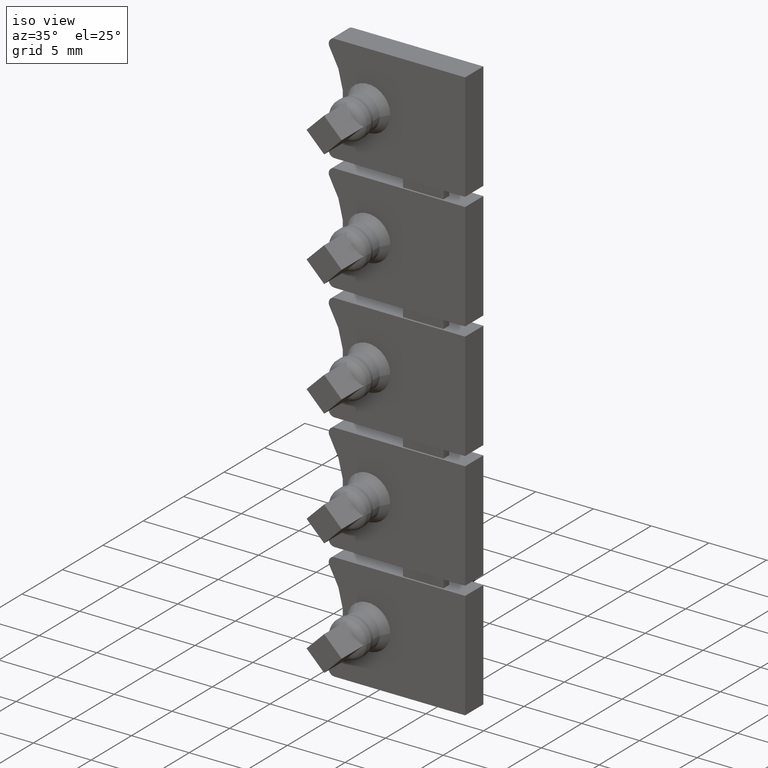
[diagram: clean part render]
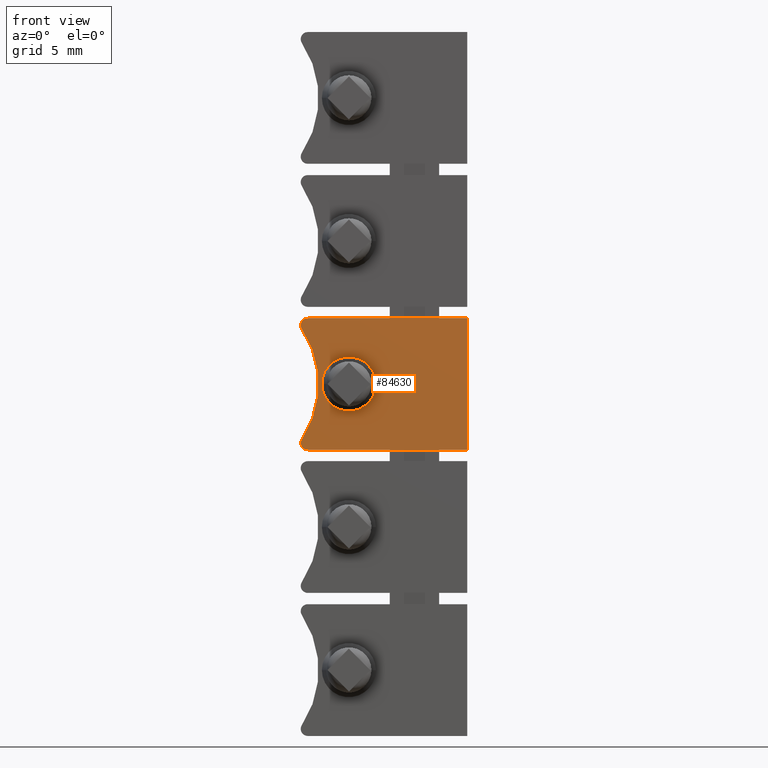
[diagram: tour spotlight — one face highlighted and labeled with its STEP entity id]
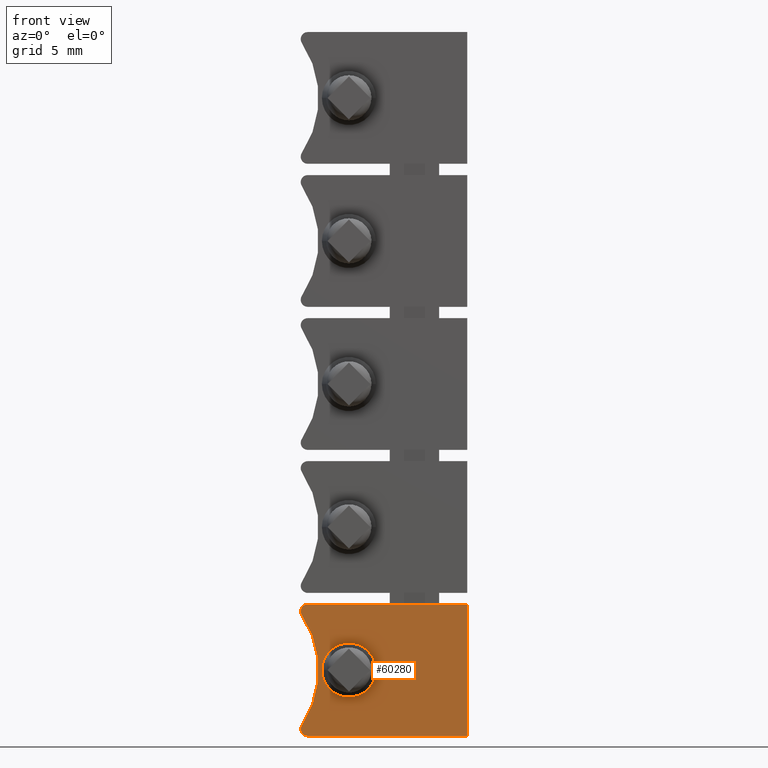
[diagram: tour spotlight — one face highlighted and labeled with its STEP entity id]
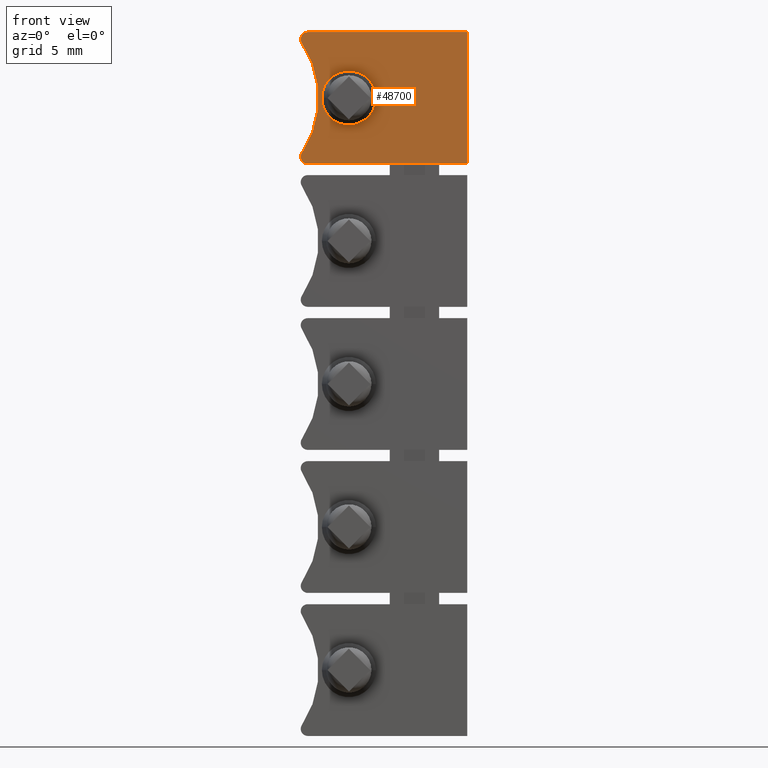
[diagram: tour spotlight — one face highlighted and labeled with its STEP entity id]
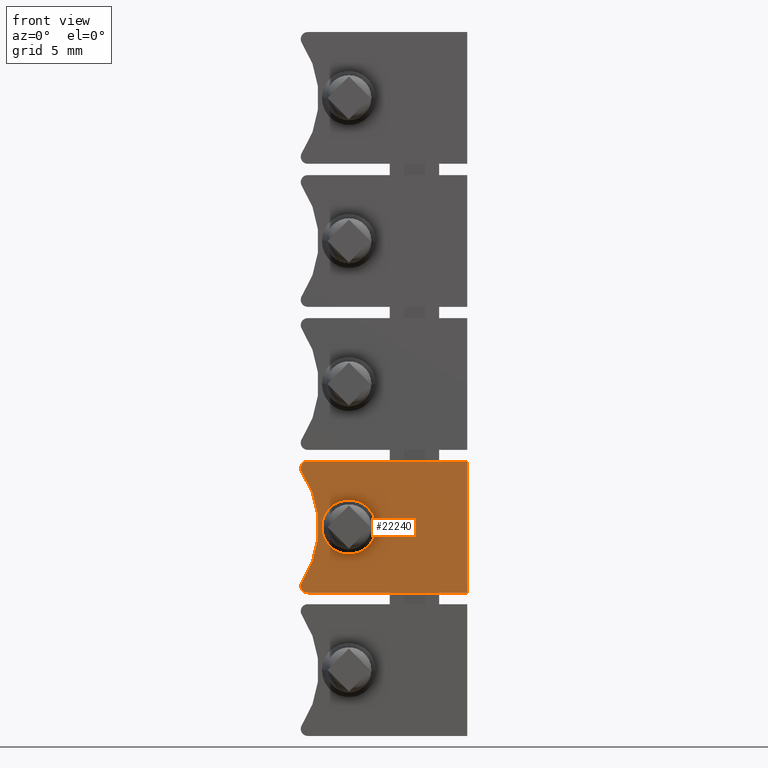
[diagram: tour spotlight — one face highlighted and labeled with its STEP entity id]
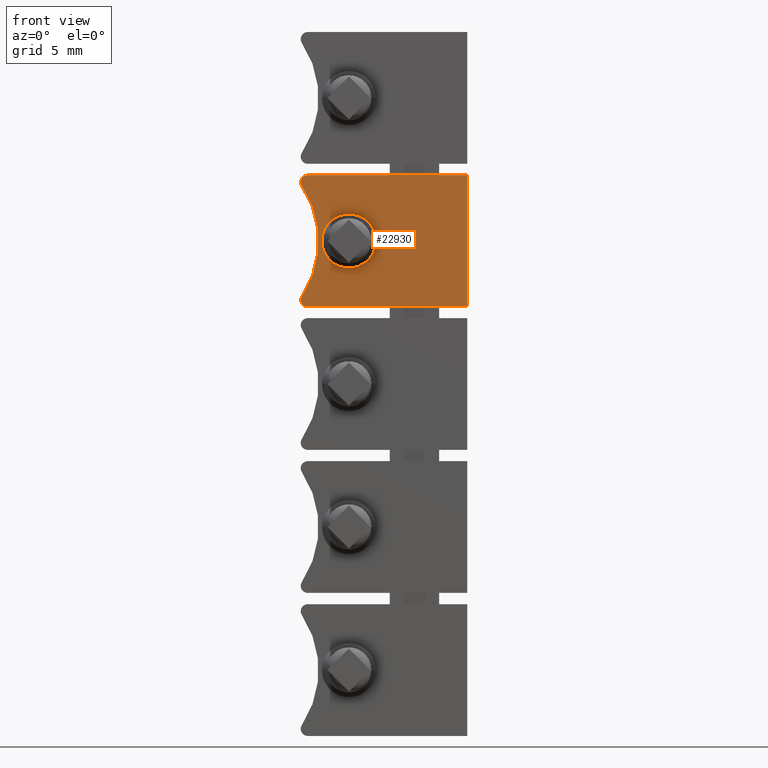
[diagram: tour spotlight — one face highlighted and labeled with its STEP entity id]
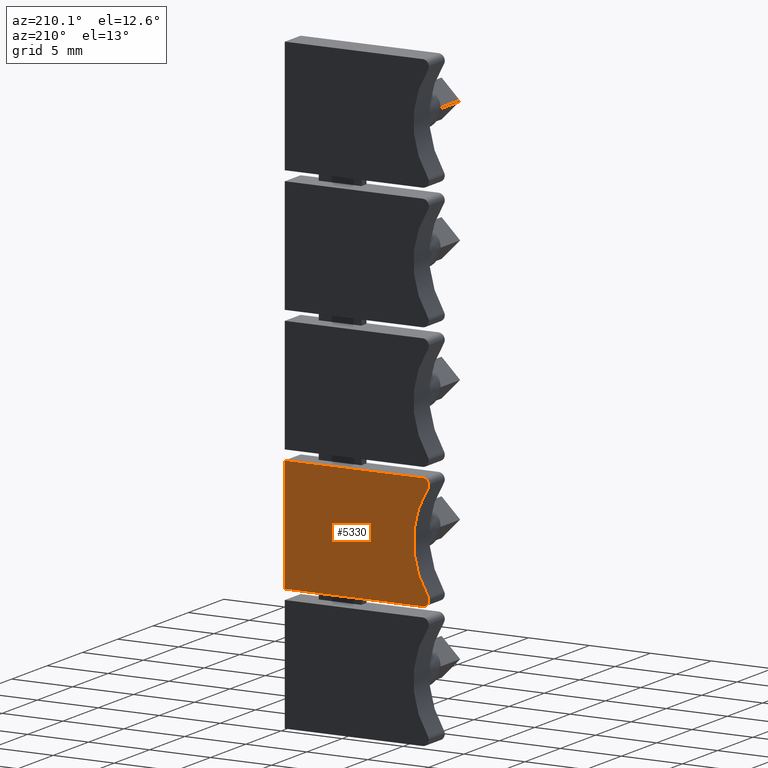
[diagram: tour spotlight — one face highlighted and labeled with its STEP entity id]
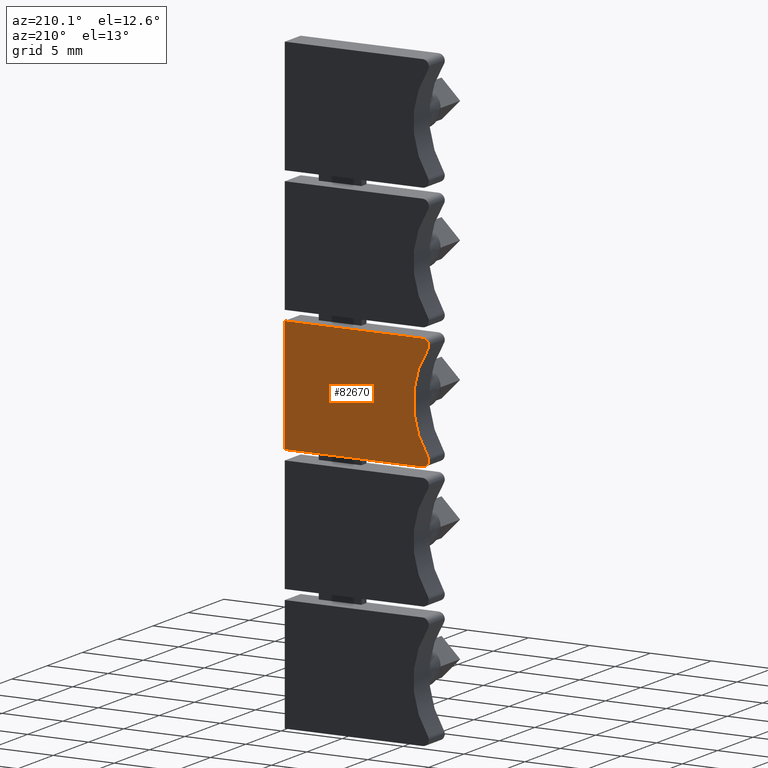
[diagram: tour spotlight — one face highlighted and labeled with its STEP entity id]
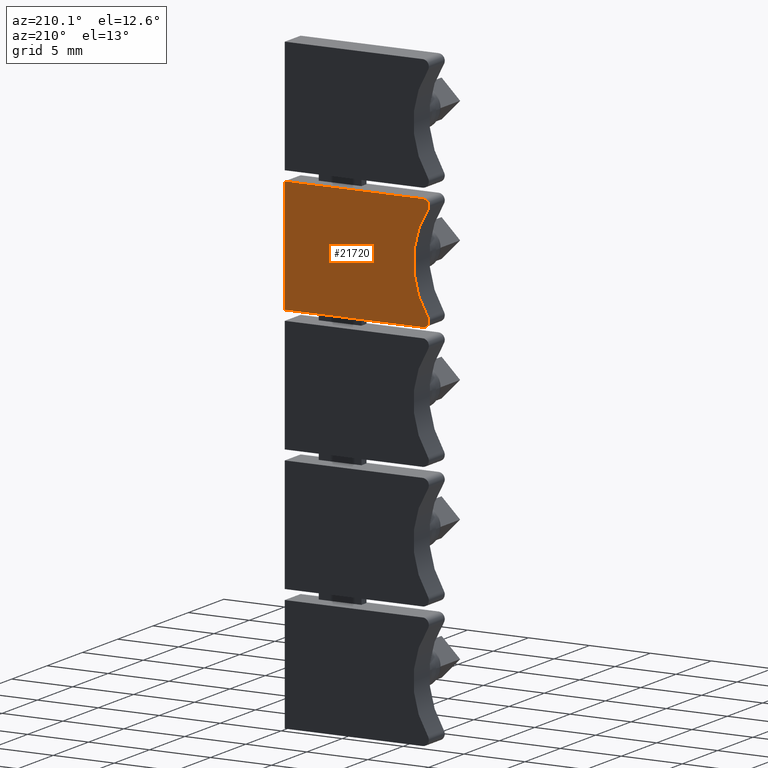
[diagram: tour spotlight — one face highlighted and labeled with its STEP entity id]
A machine part: a face-by-face anatomy tour. The part has 131 B-rep faces; the first image is the clean iso view, then the 8 largest visible faces are spotlighted one at a time (largest first), each with its STEP entity span.

Face 1 — front view, entity #84630. In plain terms, the highlighted planar face has unit normal (0, 1, -0).
Definition (entity closure, byte-faithful):
#23410=CARTESIAN_POINT('',(-18.9568131782243,42.8120767804526,
39.3466666640875));
#23420=VERTEX_POINT('',#23410);
#23470=CARTESIAN_POINT('',(-24.7719648438106,42.812076780478,35.45));
#23480=DIRECTION('',(4.37360856649983E-12,1.,0.));
#23490=DIRECTION('',(-1.,4.37360856649983E-12,0.));
#23500=AXIS2_PLACEMENT_3D('',#23470,#23480,#23490);
#23510=CIRCLE('',#23500,6.99999999891299);
#23520=CARTESIAN_POINT('',(-18.9568131816267,42.8120767804526,
31.5533333308349));
#23530=VERTEX_POINT('',#23520);
#23540=EDGE_CURVE('',#23420,#23530,#23510,.T.);
#73780=CARTESIAN_POINT('',(-18.2837265971489,42.8120767804496,
40.1249999972799));
#73790=DIRECTION('',(-1.,4.37360856649983E-12,0.));
#73800=VECTOR('',#73790,1.);
#73810=LINE('',#73780,#73800);
#73820=CARTESIAN_POINT('',(-7.22161674200213,42.8120767804012,
40.1249999972799));
#73830=VERTEX_POINT('',#73820);
#73840=CARTESIAN_POINT('',(-18.5414452020465,42.8120767804508,
40.1249999972799));
#73850=VERTEX_POINT('',#73840);
#73860=EDGE_CURVE('',#73830,#73850,#73810,.T.);
#75580=CARTESIAN_POINT('',(-7.22161674200213,42.8120767804012,
7.57955973337427));
#75590=DIRECTION('',(0.,0.,-1.));
#75600=VECTOR('',#75590,1.);
#75610=LINE('',#75580,#75600);
#75620=CARTESIAN_POINT('',(-7.22161674200213,42.8120767804012,
30.7749999972799));
#75630=VERTEX_POINT('',#75620);
#75640=EDGE_CURVE('',#73830,#75630,#75610,.T.);
#77340=CARTESIAN_POINT('',(-18.5414452020465,42.8120767804508,
39.6249999972799));
#77350=DIRECTION('',(4.37360856649983E-12,1.,0.));
#77360=DIRECTION('',(-1.,4.37360856649983E-12,0.));
#77370=AXIS2_PLACEMENT_3D('',#77340,#77350,#77360);
#77380=CIRCLE('',#77370,0.5);
#77390=EDGE_CURVE('',#23420,#73850,#77380,.T.);
#78280=CARTESIAN_POINT('',(-18.541445205692,42.8120767804508,
30.7749999972799));
#78290=VERTEX_POINT('',#78280);
#78320=CARTESIAN_POINT('',(-18.2837265971489,42.8120767804496,
30.7749999972799));
#78330=DIRECTION('',(1.,-4.37360856649983E-12,0.));
#78340=VECTOR('',#78330,1.);
#78350=LINE('',#78320,#78340);
#78360=EDGE_CURVE('',#78290,#75630,#78350,.T.);
#83980=CARTESIAN_POINT('',(-18.541445205692,42.8120767804508,
31.2749999972799));
#83990=DIRECTION('',(4.37360856649983E-12,1.,0.));
#84000=DIRECTION('',(-1.,4.37360856649983E-12,0.));
#84010=AXIS2_PLACEMENT_3D('',#83980,#83990,#84000);
#84020=CIRCLE('',#84010,0.5);
#84030=EDGE_CURVE('',#78290,#23530,#84020,.T.);
#84350=CARTESIAN_POINT('',(-18.2837265971489,42.8120767804496,
38.0295597333743));
#84360=DIRECTION('',(4.37360856649983E-12,1.,-0.));
#84370=DIRECTION('',(-1.,4.37360856649983E-12,0.));
#84380=AXIS2_PLACEMENT_3D('',#84350,#84360,#84370);
#84390=PLANE('',#84380);
#84400=CARTESIAN_POINT('',(-15.6219648448759,42.812076780438,35.45));
#84410=DIRECTION('',(4.37360856649983E-12,1.,0.));
#84420=DIRECTION('',(-1.,4.37360856649983E-12,0.));
#84430=AXIS2_PLACEMENT_3D('',#84400,#84410,#84420);
#84440=CIRCLE('',#84430,1.91825217251941);
#84450=CARTESIAN_POINT('',(-13.7037126723565,42.8120767804296,35.45));
#84460=VERTEX_POINT('',#84450);
#84470=CARTESIAN_POINT('',(-17.5402170173953,42.8120767804464,35.45));
#84480=VERTEX_POINT('',#84470);
#84490=EDGE_CURVE('',#84460,#84480,#84440,.T.);
#84500=ORIENTED_EDGE('',*,*,#84490,.T.);
#84510=EDGE_CURVE('',#84480,#84460,#84440,.T.);
#84520=ORIENTED_EDGE('',*,*,#84510,.T.);
#84530=EDGE_LOOP('',(#84520,#84500));
#84540=FACE_BOUND('',#84530,.T.);
#84550=ORIENTED_EDGE('',*,*,#84030,.F.);
#84560=ORIENTED_EDGE('',*,*,#23540,.T.);
#84570=ORIENTED_EDGE('',*,*,#77390,.F.);
#84580=ORIENTED_EDGE('',*,*,#73860,.T.);
#84590=ORIENTED_EDGE('',*,*,#75640,.F.);
#84600=ORIENTED_EDGE('',*,*,#78360,.T.);
#84610=EDGE_LOOP('',(#84600,#84590,#84580,#84570,#84560,#84550));
#84620=FACE_OUTER_BOUND('',#84610,.T.);
#84630=ADVANCED_FACE('',(#84540,#84620),#84390,.F.);

Face 2 — front view, entity #60280. In plain terms, the highlighted planar face has unit normal (0, 1, -0).
Definition (entity closure, byte-faithful):
#42450=CARTESIAN_POINT('',(-18.2837265971489,42.8120767804496,
19.8249999972799));
#42460=DIRECTION('',(-1.,4.37360856649983E-12,0.));
#42470=VECTOR('',#42460,1.);
#42480=LINE('',#42450,#42470);
#42490=CARTESIAN_POINT('',(-7.22161674200213,42.8120767804012,
19.8249999972799));
#42500=VERTEX_POINT('',#42490);
#42510=CARTESIAN_POINT('',(-18.5414452020465,42.8120767804508,
19.8249999972799));
#42520=VERTEX_POINT('',#42510);
#42530=EDGE_CURVE('',#42500,#42520,#42480,.T.);
#49130=CARTESIAN_POINT('',(-18.2837265971489,42.8120767804496,
10.4749999972799));
#49140=DIRECTION('',(1.,-4.37360856649983E-12,0.));
#49150=VECTOR('',#49140,1.);
#49160=LINE('',#49130,#49150);
#49170=CARTESIAN_POINT('',(-18.541445205692,42.8120767804508,
10.4749999972799));
#49180=VERTEX_POINT('',#49170);
#49190=CARTESIAN_POINT('',(-7.22161674200213,42.8120767804012,
10.4749999972799));
#49200=VERTEX_POINT('',#49190);
#49210=EDGE_CURVE('',#49180,#49200,#49160,.T.);
#52400=CARTESIAN_POINT('',(-18.9568131782243,42.8120767804526,
19.0466666640875));
#52410=VERTEX_POINT('',#52400);
#52460=CARTESIAN_POINT('',(-24.7719648438106,42.812076780478,15.15));
#52470=DIRECTION('',(4.37360856649983E-12,1.,0.));
#52480=DIRECTION('',(-1.,4.37360856649983E-12,0.));
#52490=AXIS2_PLACEMENT_3D('',#52460,#52470,#52480);
#52500=CIRCLE('',#52490,6.99999999891299);
#52510=CARTESIAN_POINT('',(-18.9568131816267,42.8120767804526,
11.2533333308349));
#52520=VERTEX_POINT('',#52510);
#52530=EDGE_CURVE('',#52410,#52520,#52500,.T.);
#59620=CARTESIAN_POINT('',(-13.7037126723565,42.8120767804296,15.15));
#59630=VERTEX_POINT('',#59620);
#59720=CARTESIAN_POINT('',(-17.5402170173953,42.8120767804464,15.15));
#59730=VERTEX_POINT('',#59720);
#59760=CARTESIAN_POINT('',(-15.6219648448759,42.812076780438,15.15));
#59770=DIRECTION('',(4.37360856649983E-12,1.,0.));
#59780=DIRECTION('',(-1.,4.37360856649983E-12,0.));
#59790=AXIS2_PLACEMENT_3D('',#59760,#59770,#59780);
#59800=CIRCLE('',#59790,1.91825217251941);
#59810=EDGE_CURVE('',#59730,#59630,#59800,.T.);
#59930=CARTESIAN_POINT('',(-18.2837265971489,42.8120767804496,
17.7295597333743));
#59940=DIRECTION('',(4.37360856649983E-12,1.,-0.));
#59950=DIRECTION('',(-1.,4.37360856649983E-12,0.));
#59960=AXIS2_PLACEMENT_3D('',#59930,#59940,#59950);
#59970=PLANE('',#59960);
#59980=EDGE_CURVE('',#59630,#59730,#59800,.T.);
#59990=ORIENTED_EDGE('',*,*,#59980,.T.);
#60000=ORIENTED_EDGE('',*,*,#59810,.T.);
#60010=EDGE_LOOP('',(#60000,#59990));
#60020=FACE_BOUND('',#60010,.T.);
#60030=CARTESIAN_POINT('',(-18.541445205692,42.8120767804508,
10.9749999972799));
#60040=DIRECTION('',(4.37360856649983E-12,1.,0.));
#60050=DIRECTION('',(-1.,4.37360856649983E-12,0.));
#60060=AXIS2_PLACEMENT_3D('',#60030,#60040,#60050);
#60070=CIRCLE('',#60060,0.5);
#60080=EDGE_CURVE('',#49180,#52520,#60070,.T.);
#60090=ORIENTED_EDGE('',*,*,#60080,.F.);
#60100=ORIENTED_EDGE('',*,*,#52530,.T.);
#60110=CARTESIAN_POINT('',(-18.5414452020465,42.8120767804508,
19.3249999972799));
#60120=DIRECTION('',(4.37360856649983E-12,1.,0.));
#60130=DIRECTION('',(-1.,4.37360856649983E-12,0.));
#60140=AXIS2_PLACEMENT_3D('',#60110,#60120,#60130);
#60150=CIRCLE('',#60140,0.5);
#60160=EDGE_CURVE('',#52410,#42520,#60150,.T.);
#60170=ORIENTED_EDGE('',*,*,#60160,.F.);
#60180=ORIENTED_EDGE('',*,*,#42530,.T.);
#60190=CARTESIAN_POINT('',(-7.22161674200213,42.8120767804012,
7.57955973337427));
#60200=DIRECTION('',(0.,0.,-1.));
#60210=VECTOR('',#60200,1.);
#60220=LINE('',#60190,#60210);
#60230=EDGE_CURVE('',#42500,#49200,#60220,.T.);
#60240=ORIENTED_EDGE('',*,*,#60230,.F.);
#60250=ORIENTED_EDGE('',*,*,#49210,.T.);
#60260=EDGE_LOOP('',(#60250,#60240,#60180,#60170,#60100,#60090));
#60270=FACE_OUTER_BOUND('',#60260,.T.);
#60280=ADVANCED_FACE('',(#60020,#60270),#59970,.F.);

Face 3 — front view, entity #48700. In plain terms, the highlighted planar face has unit normal (0, 1, -0).
Definition (entity closure, byte-faithful):
#47700=CARTESIAN_POINT('',(-7.22161674200213,42.8120767804012,
51.0749999972799));
#47710=VERTEX_POINT('',#47700);
#47860=CARTESIAN_POINT('',(-18.541445205692,42.8120767804508,
51.0749999972799));
#47870=VERTEX_POINT('',#47860);
#47900=CARTESIAN_POINT('',(-18.2837265971489,42.8120767804496,
51.0749999972799));
#47910=DIRECTION('',(1.,-4.37360856649983E-12,0.));
#47920=VECTOR('',#47910,1.);
#47930=LINE('',#47900,#47920);
#47940=EDGE_CURVE('',#47870,#47710,#47930,.T.);
#48060=CARTESIAN_POINT('',(-18.2837265971489,42.8120767804496,
58.3295597333743));
#48070=DIRECTION('',(4.37360856649983E-12,1.,-0.));
#48080=DIRECTION('',(-1.,4.37360856649983E-12,0.));
#48090=AXIS2_PLACEMENT_3D('',#48060,#48070,#48080);
#48100=PLANE('',#48090);
#48110=CARTESIAN_POINT('',(-15.6219648448759,42.812076780438,55.75));
#48120=DIRECTION('',(4.37360856649983E-12,1.,0.));
#48130=DIRECTION('',(-1.,4.37360856649983E-12,0.));
#48140=AXIS2_PLACEMENT_3D('',#48110,#48120,#48130);
#48150=CIRCLE('',#48140,1.91825217251941);
#48160=CARTESIAN_POINT('',(-13.7037126723565,42.8120767804296,55.75));
#48170=VERTEX_POINT('',#48160);
#48180=CARTESIAN_POINT('',(-17.5402170173953,42.8120767804464,55.75));
#48190=VERTEX_POINT('',#48180);
#48200=EDGE_CURVE('',#48170,#48190,#48150,.T.);
#48210=ORIENTED_EDGE('',*,*,#48200,.T.);
#48220=EDGE_CURVE('',#48190,#48170,#48150,.T.);
#48230=ORIENTED_EDGE('',*,*,#48220,.T.);
#48240=EDGE_LOOP('',(#48230,#48210));
#48250=FACE_BOUND('',#48240,.T.);
#48260=CARTESIAN_POINT('',(-18.541445205692,42.8120767804508,
51.5749999972799));
#48270=DIRECTION('',(4.37360856649983E-12,1.,0.));
#48280=DIRECTION('',(-1.,4.37360856649983E-12,0.));
#48290=AXIS2_PLACEMENT_3D('',#48260,#48270,#48280);
#48300=CIRCLE('',#48290,0.5);
#48310=CARTESIAN_POINT('',(-18.9568131816267,42.8120767804526,
51.8533333308349));
#48320=VERTEX_POINT('',#48310);
#48330=EDGE_CURVE('',#47870,#48320,#48300,.T.);
#48340=ORIENTED_EDGE('',*,*,#48330,.F.);
#48350=CARTESIAN_POINT('',(-24.7719648438106,42.812076780478,55.75));
#48360=DIRECTION('',(4.37360856649983E-12,1.,0.));
#48370=DIRECTION('',(-1.,4.37360856649983E-12,0.));
#48380=AXIS2_PLACEMENT_3D('',#48350,#48360,#48370);
#48390=CIRCLE('',#48380,6.99999999891299);
#48400=CARTESIAN_POINT('',(-18.9568131782243,42.8120767804526,
59.6466666640875));
#48410=VERTEX_POINT('',#48400);
#48420=EDGE_CURVE('',#48410,#48320,#48390,.T.);
#48430=ORIENTED_EDGE('',*,*,#48420,.T.);
#48440=CARTESIAN_POINT('',(-18.5414452020465,42.8120767804508,
59.9249999972799));
#48450=DIRECTION('',(4.37360856649983E-12,1.,0.));
#48460=DIRECTION('',(-1.,4.37360856649983E-12,0.));
#48470=AXIS2_PLACEMENT_3D('',#48440,#48450,#48460);
#48480=CIRCLE('',#48470,0.5);
#48490=CARTESIAN_POINT('',(-18.5414452020465,42.8120767804508,
60.4249999972799));
#48500=VERTEX_POINT('',#48490);
#48510=EDGE_CURVE('',#48410,#48500,#48480,.T.);
#48520=ORIENTED_EDGE('',*,*,#48510,.F.);
#48530=CARTESIAN_POINT('',(-18.2837265971489,42.8120767804496,
60.4249999972799));
#48540=DIRECTION('',(-1.,4.37360856649983E-12,0.));
#48550=VECTOR('',#48540,1.);
#48560=LINE('',#48530,#48550);
#48570=CARTESIAN_POINT('',(-7.22161674200213,42.8120767804012,
60.4249999972799));
#48580=VERTEX_POINT('',#48570);
#48590=EDGE_CURVE('',#48580,#48500,#48560,.T.);
#48600=ORIENTED_EDGE('',*,*,#48590,.T.);
#48610=CARTESIAN_POINT('',(-7.22161674200213,42.8120767804012,
7.57955973337427));
#48620=DIRECTION('',(0.,0.,-1.));
#48630=VECTOR('',#48620,1.);
#48640=LINE('',#48610,#48630);
#48650=EDGE_CURVE('',#48580,#47710,#48640,.T.);
#48660=ORIENTED_EDGE('',*,*,#48650,.F.);
#48670=ORIENTED_EDGE('',*,*,#47940,.T.);
#48680=EDGE_LOOP('',(#48670,#48660,#48600,#48520,#48430,#48340));
#48690=FACE_OUTER_BOUND('',#48680,.T.);
#48700=ADVANCED_FACE('',(#48250,#48690),#48100,.F.);

Face 4 — front view, entity #22240. In plain terms, the highlighted planar face has unit normal (0, 1, -0).
Definition (entity closure, byte-faithful):
#100=CARTESIAN_POINT('',(-18.9568131782243,42.8120767804526,
29.1966666640875));
#110=VERTEX_POINT('',#100);
#160=CARTESIAN_POINT('',(-24.7719648438106,42.812076780478,25.3));
#170=DIRECTION('',(4.37360856649983E-12,1.,0.));
#180=DIRECTION('',(-1.,4.37360856649983E-12,0.));
#190=AXIS2_PLACEMENT_3D('',#160,#170,#180);
#200=CIRCLE('',#190,6.99999999891299);
#210=CARTESIAN_POINT('',(-18.9568131816267,42.8120767804526,
21.4033333308349));
#220=VERTEX_POINT('',#210);
#230=EDGE_CURVE('',#110,#220,#200,.T.);
#4030=CARTESIAN_POINT('',(-18.2837265971489,42.8120767804496,
20.6249999972799));
#4040=DIRECTION('',(1.,-4.37360856649983E-12,0.));
#4050=VECTOR('',#4040,1.);
#4060=LINE('',#4030,#4050);
#4070=CARTESIAN_POINT('',(-18.541445205692,42.8120767804508,
20.6249999972799));
#4080=VERTEX_POINT('',#4070);
#4090=CARTESIAN_POINT('',(-7.22161674200213,42.8120767804012,
20.6249999972799));
#4100=VERTEX_POINT('',#4090);
#4110=EDGE_CURVE('',#4080,#4100,#4060,.T.);
#4560=CARTESIAN_POINT('',(-13.7037126723565,42.8120767804296,25.3));
#4570=VERTEX_POINT('',#4560);
#4730=CARTESIAN_POINT('',(-17.5402170173953,42.8120767804464,25.3));
#4740=VERTEX_POINT('',#4730);
#4770=CARTESIAN_POINT('',(-15.6219648448759,42.812076780438,25.3));
#4780=DIRECTION('',(4.37360856649983E-12,1.,0.));
#4790=DIRECTION('',(-1.,4.37360856649983E-12,0.));
#4800=AXIS2_PLACEMENT_3D('',#4770,#4780,#4790);
#4810=CIRCLE('',#4800,1.91825217251941);
#4820=EDGE_CURVE('',#4740,#4570,#4810,.T.);
#21800=CARTESIAN_POINT('',(-18.2837265971489,42.8120767804496,
27.8795597333743));
#21810=DIRECTION('',(4.37360856649983E-12,1.,-0.));
#21820=DIRECTION('',(-1.,4.37360856649983E-12,0.));
#21830=AXIS2_PLACEMENT_3D('',#21800,#21810,#21820);
#21840=PLANE('',#21830);
#21850=EDGE_CURVE('',#4570,#4740,#4810,.T.);
#21860=ORIENTED_EDGE('',*,*,#21850,.T.);
#21870=ORIENTED_EDGE('',*,*,#4820,.T.);
#21880=EDGE_LOOP('',(#21870,#21860));
#21890=FACE_BOUND('',#21880,.T.);
#21900=CARTESIAN_POINT('',(-18.541445205692,42.8120767804508,
21.1249999972799));
#21910=DIRECTION('',(4.37360856649983E-12,1.,0.));
#21920=DIRECTION('',(-1.,4.37360856649983E-12,0.));
#21930=AXIS2_PLACEMENT_3D('',#21900,#21910,#21920);
#21940=CIRCLE('',#21930,0.5);
#21950=EDGE_CURVE('',#4080,#220,#21940,.T.);
#21960=ORIENTED_EDGE('',*,*,#21950,.F.);
#21970=ORIENTED_EDGE('',*,*,#230,.T.);
#21980=CARTESIAN_POINT('',(-18.5414452020465,42.8120767804508,
29.4749999972799));
#21990=DIRECTION('',(4.37360856649983E-12,1.,0.));
#22000=DIRECTION('',(-1.,4.37360856649983E-12,0.));
#22010=AXIS2_PLACEMENT_3D('',#21980,#21990,#22000);
#22020=CIRCLE('',#22010,0.5);
#22030=CARTESIAN_POINT('',(-18.5414452020465,42.8120767804508,
29.9749999972799));
#22040=VERTEX_POINT('',#22030);
#22050=EDGE_CURVE('',#110,#22040,#22020,.T.);
#22060=ORIENTED_EDGE('',*,*,#22050,.F.);
#22070=CARTESIAN_POINT('',(-18.2837265971489,42.8120767804496,
29.9749999972799));
#22080=DIRECTION('',(-1.,4.37360856649983E-12,0.));
#22090=VECTOR('',#22080,1.);
#22100=LINE('',#22070,#22090);
#22110=CARTESIAN_POINT('',(-7.22161674200213,42.8120767804012,
29.9749999972799));
#22120=VERTEX_POINT('',#22110);
#22130=EDGE_CURVE('',#22120,#22040,#22100,.T.);
#22140=ORIENTED_EDGE('',*,*,#22130,.T.);
#22150=CARTESIAN_POINT('',(-7.22161674200213,42.8120767804012,
7.57955973337427));
#22160=DIRECTION('',(0.,0.,-1.));
#22170=VECTOR('',#22160,1.);
#22180=LINE('',#22150,#22170);
#22190=EDGE_CURVE('',#22120,#4100,#22180,.T.);
#22200=ORIENTED_EDGE('',*,*,#22190,.F.);
#22210=ORIENTED_EDGE('',*,*,#4110,.T.);
#22220=EDGE_LOOP('',(#22210,#22200,#22140,#22060,#21970,#21960));
#22230=FACE_OUTER_BOUND('',#22220,.T.);
#22240=ADVANCED_FACE('',(#21890,#22230),#21840,.F.);

Face 5 — front view, entity #22930. In plain terms, the highlighted planar face has unit normal (0, 1, -0).
Definition (entity closure, byte-faithful):
#610=CARTESIAN_POINT('',(-13.7037126723565,42.8120767804296,45.6));
#620=VERTEX_POINT('',#610);
#780=CARTESIAN_POINT('',(-17.5402170173953,42.8120767804464,45.6));
#790=VERTEX_POINT('',#780);
#820=CARTESIAN_POINT('',(-15.6219648448759,42.812076780438,45.6));
#830=DIRECTION('',(4.37360856649983E-12,1.,0.));
#840=DIRECTION('',(-1.,4.37360856649983E-12,0.));
#850=AXIS2_PLACEMENT_3D('',#820,#830,#840);
#860=CIRCLE('',#850,1.91825217251941);
#870=EDGE_CURVE('',#790,#620,#860,.T.);
#2630=CARTESIAN_POINT('',(-18.9568131816267,42.8120767804526,
41.7033333308349));
#2640=VERTEX_POINT('',#2630);
#2670=CARTESIAN_POINT('',(-18.541445205692,42.8120767804507,
41.4249999972799));
#2680=DIRECTION('',(4.37360856649983E-12,1.,0.));
#2690=DIRECTION('',(-1.,4.37360856649983E-12,0.));
#2700=AXIS2_PLACEMENT_3D('',#2670,#2680,#2690);
#2710=CIRCLE('',#2700,0.5);
#2720=CARTESIAN_POINT('',(-18.541445205692,42.8120767804507,
40.9249999972799));
#2730=VERTEX_POINT('',#2720);
#2740=EDGE_CURVE('',#2730,#2640,#2710,.T.);
#3370=CARTESIAN_POINT('',(-7.22161674200213,42.8120767804012,
40.9249999972799));
#3380=VERTEX_POINT('',#3370);
#3480=CARTESIAN_POINT('',(-18.2837265971489,42.8120767804496,
40.9249999972799));
#3490=DIRECTION('',(1.,-4.37360856649983E-12,0.));
#3500=VECTOR('',#3490,1.);
#3510=LINE('',#3480,#3500);
#3520=EDGE_CURVE('',#2730,#3380,#3510,.T.);
#20220=CARTESIAN_POINT('',(-18.5414452020465,42.8120767804507,
50.2749999972799));
#20230=VERTEX_POINT('',#20220);
#20260=CARTESIAN_POINT('',(-18.5414452020465,42.8120767804507,
49.7749999972799));
#20270=DIRECTION('',(4.37360856649983E-12,1.,0.));
#20280=DIRECTION('',(-1.,4.37360856649983E-12,0.));
#20290=AXIS2_PLACEMENT_3D('',#20260,#20270,#20280);
#20300=CIRCLE('',#20290,0.5);
#20310=CARTESIAN_POINT('',(-18.9568131782243,42.8120767804526,
49.4966666640875));
#20320=VERTEX_POINT('',#20310);
#20330=EDGE_CURVE('',#20320,#20230,#20300,.T.);
#20570=CARTESIAN_POINT('',(-24.7719648438106,42.812076780478,45.6));
#20580=DIRECTION('',(4.37360856649983E-12,1.,0.));
#20590=DIRECTION('',(-1.,4.37360856649983E-12,0.));
#20600=AXIS2_PLACEMENT_3D('',#20570,#20580,#20590);
#20610=CIRCLE('',#20600,6.99999999891299);
#20620=EDGE_CURVE('',#20320,#2640,#20610,.T.);
#21210=CARTESIAN_POINT('',(-18.2837265971489,42.8120767804496,
50.2749999972799));
#21220=DIRECTION('',(-1.,4.37360856649983E-12,0.));
#21230=VECTOR('',#21220,1.);
#21240=LINE('',#21210,#21230);
#21250=CARTESIAN_POINT('',(-7.22161674200213,42.8120767804012,
50.2749999972799));
#21260=VERTEX_POINT('',#21250);
#21270=EDGE_CURVE('',#21260,#20230,#21240,.T.);
#22700=CARTESIAN_POINT('',(-18.2837265971489,42.8120767804496,
48.1795597333743));
#22710=DIRECTION('',(4.37360856649983E-12,1.,-0.));
#22720=DIRECTION('',(-1.,4.37360856649983E-12,0.));
#22730=AXIS2_PLACEMENT_3D('',#22700,#22710,#22720);
#22740=PLANE('',#22730);
#22750=EDGE_CURVE('',#620,#790,#860,.T.);
#22760=ORIENTED_EDGE('',*,*,#22750,.T.);
#22770=ORIENTED_EDGE('',*,*,#870,.T.);
#22780=EDGE_LOOP('',(#22770,#22760));
#22790=FACE_BOUND('',#22780,.T.);
#22800=ORIENTED_EDGE('',*,*,#2740,.F.);
#22810=ORIENTED_EDGE('',*,*,#20620,.T.);
#22820=ORIENTED_EDGE('',*,*,#20330,.F.);
#22830=ORIENTED_EDGE('',*,*,#21270,.T.);
#22840=CARTESIAN_POINT('',(-7.22161674200213,42.8120767804012,
7.57955973337427));
#22850=DIRECTION('',(0.,0.,-1.));
#22860=VECTOR('',#22850,1.);
#22870=LINE('',#22840,#22860);
#22880=EDGE_CURVE('',#21260,#3380,#22870,.T.);
#22890=ORIENTED_EDGE('',*,*,#22880,.F.);
#22900=ORIENTED_EDGE('',*,*,#3520,.T.);
#22910=EDGE_LOOP('',(#22900,#22890,#22830,#22820,#22810,#22800));
#22920=FACE_OUTER_BOUND('',#22910,.T.);
#22930=ADVANCED_FACE('',(#22790,#22920),#22740,.F.);

Face 6 — auxiliary view, entity #5330. In plain terms, the highlighted planar face has unit normal (0, 1, -0).
Definition (entity closure, byte-faithful):
#120=CARTESIAN_POINT('',(-18.9568131782144,45.0620767804526,
29.1966666640875));
#130=VERTEX_POINT('',#120);
#290=CARTESIAN_POINT('',(-18.9568131816169,45.0620767804526,
21.4033333308349));
#300=VERTEX_POINT('',#290);
#330=CARTESIAN_POINT('',(-24.7719648438007,45.062076780478,25.3));
#340=DIRECTION('',(4.37360856649983E-12,1.,0.));
#350=DIRECTION('',(-1.,4.37360856649983E-12,0.));
#360=AXIS2_PLACEMENT_3D('',#330,#340,#350);
#370=CIRCLE('',#360,6.99999999891299);
#380=EDGE_CURVE('',#130,#300,#370,.T.);
#4170=CARTESIAN_POINT('',(-7.22161674199229,45.0620767804012,
20.6249999972799));
#4180=VERTEX_POINT('',#4170);
#4210=CARTESIAN_POINT('',(-18.2837265971391,45.0620767804496,
20.6249999972799));
#4220=DIRECTION('',(-1.,4.37360856649983E-12,0.));
#4230=VECTOR('',#4220,1.);
#4240=LINE('',#4210,#4230);
#4250=CARTESIAN_POINT('',(-18.5414452056821,45.0620767804508,
20.6249999972799));
#4260=VERTEX_POINT('',#4250);
#4270=EDGE_CURVE('',#4180,#4260,#4240,.T.);
#4940=CARTESIAN_POINT('',(-18.2837265971391,45.0620767804496,
27.8795597333743));
#4950=DIRECTION('',(4.37360856649983E-12,1.,-0.));
#4960=DIRECTION('',(-1.,4.37360856649983E-12,0.));
#4970=AXIS2_PLACEMENT_3D('',#4940,#4950,#4960);
#4980=PLANE('',#4970);
#4990=CARTESIAN_POINT('',(-18.2837265971391,45.0620767804496,
29.9749999972799));
#5000=DIRECTION('',(-1.,4.37360856649983E-12,0.));
#5010=VECTOR('',#5000,1.);
#5020=LINE('',#4990,#5010);
#5030=CARTESIAN_POINT('',(-7.22161674199229,45.0620767804012,
29.9749999972799));
#5040=VERTEX_POINT('',#5030);
#5050=CARTESIAN_POINT('',(-18.5414452020366,45.0620767804508,
29.9749999972799));
#5060=VERTEX_POINT('',#5050);
#5070=EDGE_CURVE('',#5040,#5060,#5020,.T.);
#5080=ORIENTED_EDGE('',*,*,#5070,.F.);
#5090=CARTESIAN_POINT('',(-18.5414452020366,45.0620767804508,
29.4749999972799));
#5100=DIRECTION('',(4.37360856649983E-12,1.,0.));
#5110=DIRECTION('',(-1.,4.37360856649983E-12,0.));
#5120=AXIS2_PLACEMENT_3D('',#5090,#5100,#5110);
#5130=CIRCLE('',#5120,0.5);
#5140=EDGE_CURVE('',#130,#5060,#5130,.T.);
#5150=ORIENTED_EDGE('',*,*,#5140,.T.);
#5160=ORIENTED_EDGE('',*,*,#380,.F.);
#5170=CARTESIAN_POINT('',(-18.5414452056821,45.0620767804508,
21.1249999972799));
#5180=DIRECTION('',(4.37360856649983E-12,1.,0.));
#5190=DIRECTION('',(-1.,4.37360856649983E-12,0.));
#5200=AXIS2_PLACEMENT_3D('',#5170,#5180,#5190);
#5210=CIRCLE('',#5200,0.5);
#5220=EDGE_CURVE('',#4260,#300,#5210,.T.);
#5230=ORIENTED_EDGE('',*,*,#5220,.T.);
#5240=ORIENTED_EDGE('',*,*,#4270,.T.);
#5250=CARTESIAN_POINT('',(-7.22161674199229,45.0620767804012,
7.57955973337427));
#5260=DIRECTION('',(0.,0.,-1.));
#5270=VECTOR('',#5260,1.);
#5280=LINE('',#5250,#5270);
#5290=EDGE_CURVE('',#5040,#4180,#5280,.T.);
#5300=ORIENTED_EDGE('',*,*,#5290,.T.);
#5310=EDGE_LOOP('',(#5300,#5240,#5230,#5160,#5150,#5080));
#5320=FACE_OUTER_BOUND('',#5310,.T.);
#5330=ADVANCED_FACE('',(#5320),#4980,.T.);

Face 7 — auxiliary view, entity #82670. In plain terms, the highlighted planar face has unit normal (0, 1, -0).
Definition (entity closure, byte-faithful):
#23430=CARTESIAN_POINT('',(-18.9568131782144,45.0620767804526,
39.3466666640875));
#23440=VERTEX_POINT('',#23430);
#23600=CARTESIAN_POINT('',(-18.9568131816169,45.0620767804526,
31.5533333308349));
#23610=VERTEX_POINT('',#23600);
#23640=CARTESIAN_POINT('',(-24.7719648438007,45.062076780478,35.45));
#23650=DIRECTION('',(4.37360856649983E-12,1.,0.));
#23660=DIRECTION('',(-1.,4.37360856649983E-12,0.));
#23670=AXIS2_PLACEMENT_3D('',#23640,#23650,#23660);
#23680=CIRCLE('',#23670,6.99999999891299);
#23690=EDGE_CURVE('',#23440,#23610,#23680,.T.);
#73920=CARTESIAN_POINT('',(-18.5414452020366,45.0620767804508,
40.1249999972799));
#73930=VERTEX_POINT('',#73920);
#73960=CARTESIAN_POINT('',(-18.2837265971391,45.0620767804496,
40.1249999972799));
#73970=DIRECTION('',(-1.,4.37360856649983E-12,0.));
#73980=VECTOR('',#73970,1.);
#73990=LINE('',#73960,#73980);
#74000=CARTESIAN_POINT('',(-7.22161674199229,45.0620767804012,
40.1249999972799));
#74010=VERTEX_POINT('',#74000);
#74020=EDGE_CURVE('',#74010,#73930,#73990,.T.);
#75670=CARTESIAN_POINT('',(-7.22161674199229,45.0620767804012,
7.57955973337427));
#75680=DIRECTION('',(0.,0.,-1.));
#75690=VECTOR('',#75680,1.);
#75700=LINE('',#75670,#75690);
#75710=CARTESIAN_POINT('',(-7.22161674199229,45.0620767804012,
30.7749999972799));
#75720=VERTEX_POINT('',#75710);
#75730=EDGE_CURVE('',#74010,#75720,#75700,.T.);
#77260=CARTESIAN_POINT('',(-18.5414452020366,45.0620767804508,
39.6249999972799));
#77270=DIRECTION('',(4.37360856649983E-12,1.,0.));
#77280=DIRECTION('',(-1.,4.37360856649983E-12,0.));
#77290=AXIS2_PLACEMENT_3D('',#77260,#77270,#77280);
#77300=CIRCLE('',#77290,0.5);
#77310=EDGE_CURVE('',#23440,#73930,#77300,.T.);
#78160=CARTESIAN_POINT('',(-18.2837265971391,45.0620767804496,
30.7749999972799));
#78170=DIRECTION('',(-1.,4.37360856649983E-12,0.));
#78180=VECTOR('',#78170,1.);
#78190=LINE('',#78160,#78180);
#78200=CARTESIAN_POINT('',(-18.5414452056821,45.0620767804508,
30.7749999972799));
#78210=VERTEX_POINT('',#78200);
#78220=EDGE_CURVE('',#75720,#78210,#78190,.T.);
#82480=CARTESIAN_POINT('',(-18.2837265971391,45.0620767804496,
38.0295597333743));
#82490=DIRECTION('',(4.37360856649983E-12,1.,-0.));
#82500=DIRECTION('',(-1.,4.37360856649983E-12,0.));
#82510=AXIS2_PLACEMENT_3D('',#82480,#82490,#82500);
#82520=PLANE('',#82510);
#82530=ORIENTED_EDGE('',*,*,#74020,.F.);
#82540=ORIENTED_EDGE('',*,*,#77310,.T.);
#82550=ORIENTED_EDGE('',*,*,#23690,.F.);
#82560=CARTESIAN_POINT('',(-18.5414452056821,45.0620767804508,
31.2749999972799));
#82570=DIRECTION('',(4.37360856649983E-12,1.,0.));
#82580=DIRECTION('',(-1.,4.37360856649983E-12,0.));
#82590=AXIS2_PLACEMENT_3D('',#82560,#82570,#82580);
#82600=CIRCLE('',#82590,0.5);
#82610=EDGE_CURVE('',#78210,#23610,#82600,.T.);
#82620=ORIENTED_EDGE('',*,*,#82610,.T.);
#82630=ORIENTED_EDGE('',*,*,#78220,.T.);
#82640=ORIENTED_EDGE('',*,*,#75730,.T.);
#82650=EDGE_LOOP('',(#82640,#82630,#82620,#82550,#82540,#82530));
#82660=FACE_OUTER_BOUND('',#82650,.T.);
#82670=ADVANCED_FACE('',(#82660),#82520,.T.);

Face 8 — auxiliary view, entity #21720. In plain terms, the highlighted planar face has unit normal (0, 1, -0).
Definition (entity closure, byte-faithful):
#2480=CARTESIAN_POINT('',(-18.5414452056821,45.0620767804507,
41.4249999972799));
#2490=DIRECTION('',(4.37360856649983E-12,1.,0.));
#2500=DIRECTION('',(-1.,4.37360856649983E-12,0.));
#2510=AXIS2_PLACEMENT_3D('',#2480,#2490,#2500);
#2520=CIRCLE('',#2510,0.5);
#2530=CARTESIAN_POINT('',(-18.5414452056821,45.0620767804507,
40.9249999972799));
#2540=VERTEX_POINT('',#2530);
#2550=CARTESIAN_POINT('',(-18.9568131816169,45.0620767804526,
41.7033333308349));
#2560=VERTEX_POINT('',#2550);
#2570=EDGE_CURVE('',#2540,#2560,#2520,.T.);
#3350=CARTESIAN_POINT('',(-7.22161674199229,45.0620767804012,
40.9249999972799));
#3360=VERTEX_POINT('',#3350);
#3410=CARTESIAN_POINT('',(-18.2837265971391,45.0620767804496,
40.9249999972799));
#3420=DIRECTION('',(-1.,4.37360856649983E-12,0.));
#3430=VECTOR('',#3420,1.);
#3440=LINE('',#3410,#3430);
#3450=EDGE_CURVE('',#3360,#2540,#3440,.T.);
#20070=CARTESIAN_POINT('',(-18.5414452020366,45.0620767804507,
49.7749999972799));
#20080=DIRECTION('',(4.37360856649983E-12,1.,0.));
#20090=DIRECTION('',(-1.,4.37360856649983E-12,0.));
#20100=AXIS2_PLACEMENT_3D('',#20070,#20080,#20090);
#20110=CIRCLE('',#20100,0.5);
#20120=CARTESIAN_POINT('',(-18.9568131782144,45.0620767804526,
49.4966666640875));
#20130=VERTEX_POINT('',#20120);
#20140=CARTESIAN_POINT('',(-18.5414452020366,45.0620767804507,
50.2749999972799));
#20150=VERTEX_POINT('',#20140);
#20160=EDGE_CURVE('',#20130,#20150,#20110,.T.);
#20650=CARTESIAN_POINT('',(-24.7719648438007,45.062076780478,45.6));
#20660=DIRECTION('',(4.37360856649983E-12,1.,0.));
#20670=DIRECTION('',(-1.,4.37360856649983E-12,0.));
#20680=AXIS2_PLACEMENT_3D('',#20650,#20660,#20670);
#20690=CIRCLE('',#20680,6.99999999891299);
#20700=EDGE_CURVE('',#20130,#2560,#20690,.T.);
#21300=CARTESIAN_POINT('',(-18.2837265971391,45.0620767804496,
50.2749999972799));
#21310=DIRECTION('',(-1.,4.37360856649983E-12,0.));
#21320=VECTOR('',#21310,1.);
#21330=LINE('',#21300,#21320);
#21340=CARTESIAN_POINT('',(-7.22161674199229,45.0620767804012,
50.2749999972799));
#21350=VERTEX_POINT('',#21340);
#21360=EDGE_CURVE('',#21350,#20150,#21330,.T.);
#21540=CARTESIAN_POINT('',(-18.2837265971391,45.0620767804496,
48.1795597333743));
#21550=DIRECTION('',(4.37360856649983E-12,1.,-0.));
#21560=DIRECTION('',(-1.,4.37360856649983E-12,0.));
#21570=AXIS2_PLACEMENT_3D('',#21540,#21550,#21560);
#21580=PLANE('',#21570);
#21590=ORIENTED_EDGE('',*,*,#21360,.F.);
#21600=ORIENTED_EDGE('',*,*,#20160,.T.);
#21610=ORIENTED_EDGE('',*,*,#20700,.F.);
#21620=ORIENTED_EDGE('',*,*,#2570,.T.);
#21630=ORIENTED_EDGE('',*,*,#3450,.T.);
#21640=CARTESIAN_POINT('',(-7.22161674199229,45.0620767804012,
7.57955973337427));
#21650=DIRECTION('',(0.,0.,-1.));
#21660=VECTOR('',#21650,1.);
#21670=LINE('',#21640,#21660);
#21680=EDGE_CURVE('',#21350,#3360,#21670,.T.);
#21690=ORIENTED_EDGE('',*,*,#21680,.T.);
#21700=EDGE_LOOP('',(#21690,#21630,#21620,#21610,#21600,#21590));
#21710=FACE_OUTER_BOUND('',#21700,.T.);
#21720=ADVANCED_FACE('',(#21710),#21580,.T.);